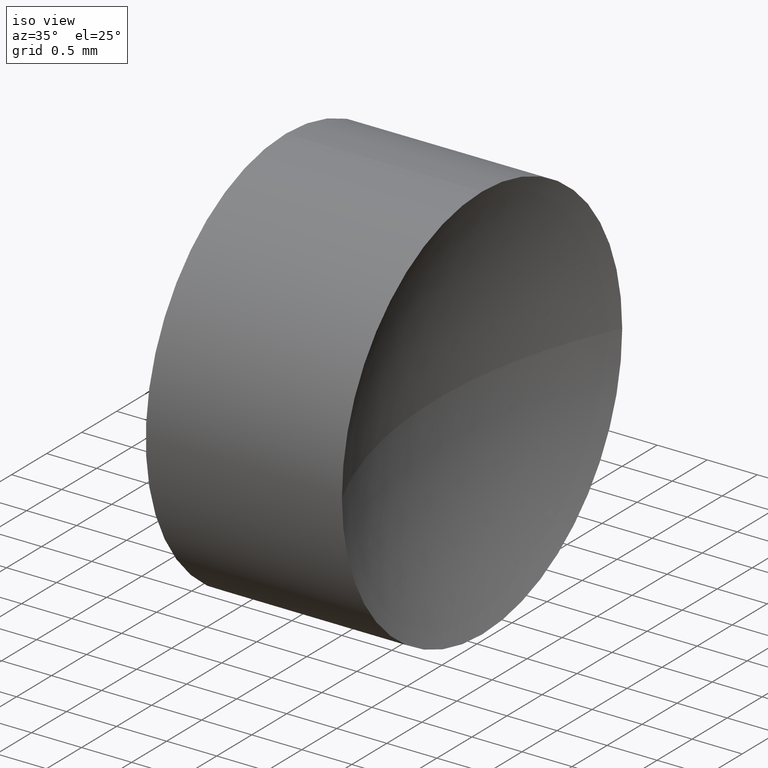
[diagram: clean part render]
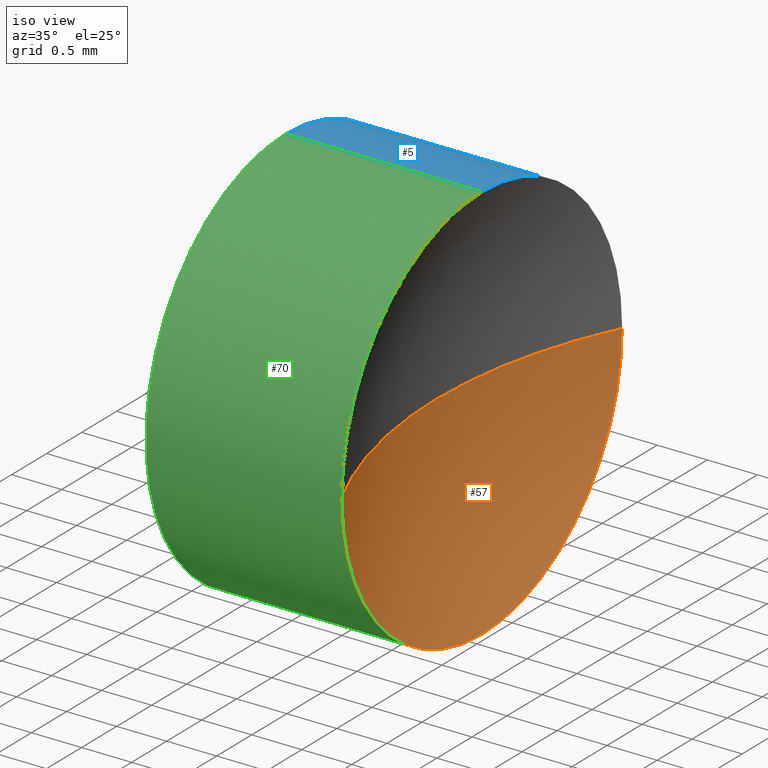
[diagram: same view with three faces highlighted in distinct colors, each labeled with its STEP entity id]
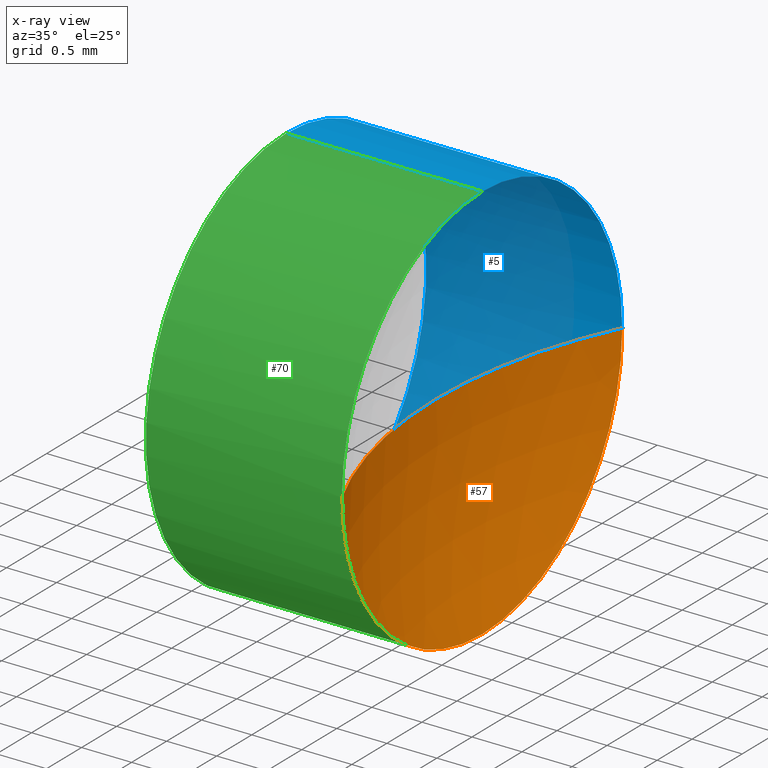
[diagram: x-ray of the same camera — body ghosted, the three highlighted faces saturated]
A machine part, iso view with three faces highlighted in distinct colors.
The next image is the same camera in x-ray (body ghosted, the three faces saturated) — at least one of them is partly hidden behind the body in this view.
Their STEP definitions:

[orange] entity #57 — the highlighted spherical surface has radius 4.58 mm.
#2 = VERTEX_POINT ( 'NONE', #150 ) ;
#3 = SPHERICAL_SURFACE ( 'NONE', #101, 4.580000000000001000 ) ;
#11 = CARTESIAN_POINT ( 'NONE',  ( 17.16059508478295800, 6.515563045701518300, 0.0000000000000000000 ) ) ;
#12 = DIRECTION ( 'NONE',  ( 0.0000000000000000000, 0.0000000000000000000, -1.000000000000000000 ) ) ;
#16 = DIRECTION ( 'NONE',  ( 0.0000000000000000000, 0.0000000000000000000, 1.000000000000000000 ) ) ;
#18 = CIRCLE ( 'NONE', #168, 2.000000000000000900 ) ;
#34 = AXIS2_PLACEMENT_3D ( 'NONE', #107, #157, #96 ) ;
#46 = FACE_OUTER_BOUND ( 'NONE', #186, .T. ) ;
#47 = ORIENTED_EDGE ( 'NONE', *, *, #145, .T. ) ;
#48 = CIRCLE ( 'NONE', #184, 2.000000000000000900 ) ;
#54 = CARTESIAN_POINT ( 'NONE',  ( 13.04035237348548100, 6.515563045701520100, 0.0000000000000000000 ) ) ;
#57 = ADVANCED_FACE ( 'NONE', ( #46 ), #3, .F. ) ;
#58 = VERTEX_POINT ( 'NONE', #109 ) ;
#59 = DIRECTION ( 'NONE',  ( 0.0000000000000000000, 1.000000000000000000, 0.0000000000000000000 ) ) ;
#60 = CARTESIAN_POINT ( 'NONE',  ( 13.04035237348548100, 6.515563045701520100, 0.0000000000000000000 ) ) ;
#62 = VERTEX_POINT ( 'NONE', #129 ) ;
#67 = ORIENTED_EDGE ( 'NONE', *, *, #103, .F. ) ;
#84 = DIRECTION ( 'NONE',  ( 0.0000000000000000000, 1.000000000000000000, 1.224646799147353500E-016 ) ) ;
#87 = ORIENTED_EDGE ( 'NONE', *, *, #131, .F. ) ;
#92 = CIRCLE ( 'NONE', #34, 4.580000000000001000 ) ;
#96 = DIRECTION ( 'NONE',  ( 1.000000000000000000, 0.0000000000000000000, 0.0000000000000000000 ) ) ;
#101 = AXIS2_PLACEMENT_3D ( 'NONE', #11, #12, #59 ) ;
#103 = EDGE_CURVE ( 'NONE', #62, #137, #18, .T. ) ;
#107 = CARTESIAN_POINT ( 'NONE',  ( 17.16059508478295800, 6.515563045701518300, 0.0000000000000000000 ) ) ;
#109 = CARTESIAN_POINT ( 'NONE',  ( 13.04035237348548100, 8.515563045701522800, 0.0000000000000000000 ) ) ;
#118 = EDGE_CURVE ( 'NONE', #58, #62, #48, .T. ) ;
#119 = AXIS2_PLACEMENT_3D ( 'NONE', #178, #152, #84 ) ;
#129 = CARTESIAN_POINT ( 'NONE',  ( 13.04035237348548100, 6.515563045701520100, -2.000000000000000900 ) ) ;
#130 = DIRECTION ( 'NONE',  ( -1.000000000000000000, -0.0000000000000000000, -0.0000000000000000000 ) ) ;
#131 = EDGE_CURVE ( 'NONE', #137, #2, #155, .T. ) ;
#137 = VERTEX_POINT ( 'NONE', #179 ) ;
#144 = ORIENTED_EDGE ( 'NONE', *, *, #118, .F. ) ;
#145 = EDGE_CURVE ( 'NONE', #58, #2, #92, .T. ) ;
#150 = CARTESIAN_POINT ( 'NONE',  ( 12.58059508478295800, 6.515563045701518300, 0.0000000000000000000 ) ) ;
#152 = DIRECTION ( 'NONE',  ( 0.0000000000000000000, 1.224646799147353200E-016, -1.000000000000000000 ) ) ;
#154 = DIRECTION ( 'NONE',  ( 0.0000000000000000000, 0.0000000000000000000, 1.000000000000000000 ) ) ;
#155 = CIRCLE ( 'NONE', #119, 4.580000000000000100 ) ;
#157 = DIRECTION ( 'NONE',  ( 0.0000000000000000000, 0.0000000000000000000, 1.000000000000000000 ) ) ;
#166 = DIRECTION ( 'NONE',  ( -1.000000000000000000, -0.0000000000000000000, -0.0000000000000000000 ) ) ;
#168 = AXIS2_PLACEMENT_3D ( 'NONE', #54, #166, #16 ) ;
#178 = CARTESIAN_POINT ( 'NONE',  ( 17.16059508478295800, 6.515563045701518300, 0.0000000000000000000 ) ) ;
#179 = CARTESIAN_POINT ( 'NONE',  ( 13.04035237348548100, 4.515563045701515700, -2.449293598294708900E-016 ) ) ;
#184 = AXIS2_PLACEMENT_3D ( 'NONE', #60, #130, #154 ) ;
#186 = EDGE_LOOP ( 'NONE', ( #87, #67, #144, #47 ) ) ;

[blue] entity #5 — the highlighted cylindrical surface (partial cylindrical patch) has radius 2 mm, axis along (-1, -0, -0).
#4 = ORIENTED_EDGE ( 'NONE', *, *, #147, .F. ) ;
#5 = ADVANCED_FACE ( 'NONE', ( #128 ), #127, .T. ) ;
#8 = DIRECTION ( 'NONE',  ( 0.0000000000000000000, 0.0000000000000000000, 1.000000000000000000 ) ) ;
#9 = LINE ( 'NONE', #110, #132 ) ;
#19 = CARTESIAN_POINT ( 'NONE',  ( 11.08059508478296000, 6.515563045701520100, -2.000000000000000900 ) ) ;
#35 = AXIS2_PLACEMENT_3D ( 'NONE', #125, #138, #40 ) ;
#40 = DIRECTION ( 'NONE',  ( 0.0000000000000000000, 0.0000000000000000000, 1.000000000000000000 ) ) ;
#42 = VERTEX_POINT ( 'NONE', #93 ) ;
#48 = CIRCLE ( 'NONE', #184, 2.000000000000000900 ) ;
#49 = EDGE_CURVE ( 'NONE', #170, #58, #120, .T. ) ;
#53 = LINE ( 'NONE', #83, #88 ) ;
#58 = VERTEX_POINT ( 'NONE', #109 ) ;
#60 = CARTESIAN_POINT ( 'NONE',  ( 13.04035237348548100, 6.515563045701520100, 0.0000000000000000000 ) ) ;
#62 = VERTEX_POINT ( 'NONE', #129 ) ;
#68 = ORIENTED_EDGE ( 'NONE', *, *, #118, .T. ) ;
#73 = DIRECTION ( 'NONE',  ( -1.000000000000000000, -0.0000000000000000000, -0.0000000000000000000 ) ) ;
#78 = DIRECTION ( 'NONE',  ( 0.0000000000000000000, 0.0000000000000000000, 1.000000000000000000 ) ) ;
#81 = CIRCLE ( 'NONE', #82, 2.000000000000000900 ) ;
#82 = AXIS2_PLACEMENT_3D ( 'NONE', #95, #73, #8 ) ;
#83 = CARTESIAN_POINT ( 'NONE',  ( 10.57823596122213100, 6.515563045701520100, 2.000000000000000900 ) ) ;
#88 = VECTOR ( 'NONE', #156, 1000.000000000000000 ) ;
#93 = CARTESIAN_POINT ( 'NONE',  ( 11.08059508478296000, 6.515563045701520100, 2.000000000000000900 ) ) ;
#95 = CARTESIAN_POINT ( 'NONE',  ( 11.08059508478296000, 6.515563045701520100, 0.0000000000000000000 ) ) ;
#97 = ORIENTED_EDGE ( 'NONE', *, *, #49, .T. ) ;
#109 = CARTESIAN_POINT ( 'NONE',  ( 13.04035237348548100, 8.515563045701522800, 0.0000000000000000000 ) ) ;
#110 = CARTESIAN_POINT ( 'NONE',  ( 10.57823596122213100, 6.515563045701520100, -2.000000000000000900 ) ) ;
#114 = EDGE_CURVE ( 'NONE', #62, #175, #9, .T. ) ;
#118 = EDGE_CURVE ( 'NONE', #58, #62, #48, .T. ) ;
#120 = CIRCLE ( 'NONE', #151, 2.000000000000000900 ) ;
#125 = CARTESIAN_POINT ( 'NONE',  ( 10.57823596122213100, 6.515563045701520100, 0.0000000000000000000 ) ) ;
#127 = CYLINDRICAL_SURFACE ( 'NONE', #35, 2.000000000000000900 ) ;
#128 = FACE_OUTER_BOUND ( 'NONE', #180, .T. ) ;
#129 = CARTESIAN_POINT ( 'NONE',  ( 13.04035237348548100, 6.515563045701520100, -2.000000000000000900 ) ) ;
#130 = DIRECTION ( 'NONE',  ( -1.000000000000000000, -0.0000000000000000000, -0.0000000000000000000 ) ) ;
#132 = VECTOR ( 'NONE', #165, 1000.000000000000000 ) ;
#138 = DIRECTION ( 'NONE',  ( -1.000000000000000000, -0.0000000000000000000, -0.0000000000000000000 ) ) ;
#146 = ORIENTED_EDGE ( 'NONE', *, *, #114, .T. ) ;
#147 = EDGE_CURVE ( 'NONE', #170, #42, #53, .T. ) ;
#151 = AXIS2_PLACEMENT_3D ( 'NONE', #176, #164, #78 ) ;
#153 = ORIENTED_EDGE ( 'NONE', *, *, #182, .F. ) ;
#154 = DIRECTION ( 'NONE',  ( 0.0000000000000000000, 0.0000000000000000000, 1.000000000000000000 ) ) ;
#156 = DIRECTION ( 'NONE',  ( -1.000000000000000000, -0.0000000000000000000, -0.0000000000000000000 ) ) ;
#164 = DIRECTION ( 'NONE',  ( -1.000000000000000000, -0.0000000000000000000, -0.0000000000000000000 ) ) ;
#165 = DIRECTION ( 'NONE',  ( -1.000000000000000000, -0.0000000000000000000, -0.0000000000000000000 ) ) ;
#167 = CARTESIAN_POINT ( 'NONE',  ( 13.04035237348548100, 6.515563045701520100, 2.000000000000000900 ) ) ;
#170 = VERTEX_POINT ( 'NONE', #167 ) ;
#175 = VERTEX_POINT ( 'NONE', #19 ) ;
#176 = CARTESIAN_POINT ( 'NONE',  ( 13.04035237348548100, 6.515563045701520100, 0.0000000000000000000 ) ) ;
#180 = EDGE_LOOP ( 'NONE', ( #68, #146, #153, #4, #97 ) ) ;
#182 = EDGE_CURVE ( 'NONE', #42, #175, #81, .T. ) ;
#184 = AXIS2_PLACEMENT_3D ( 'NONE', #60, #130, #154 ) ;

[green] entity #70 — the highlighted cylindrical surface (partial cylindrical patch) has radius 2 mm, axis along (-1, -0, -0).
#9 = LINE ( 'NONE', #110, #132 ) ;
#10 = AXIS2_PLACEMENT_3D ( 'NONE', #30, #183, #20 ) ;
#15 = AXIS2_PLACEMENT_3D ( 'NONE', #141, #64, #139 ) ;
#16 = DIRECTION ( 'NONE',  ( 0.0000000000000000000, 0.0000000000000000000, 1.000000000000000000 ) ) ;
#18 = CIRCLE ( 'NONE', #168, 2.000000000000000900 ) ;
#19 = CARTESIAN_POINT ( 'NONE',  ( 11.08059508478296000, 6.515563045701520100, -2.000000000000000900 ) ) ;
#20 = DIRECTION ( 'NONE',  ( 0.0000000000000000000, 0.0000000000000000000, 1.000000000000000000 ) ) ;
#30 = CARTESIAN_POINT ( 'NONE',  ( 13.04035237348548100, 6.515563045701520100, 0.0000000000000000000 ) ) ;
#33 = ORIENTED_EDGE ( 'NONE', *, *, #147, .T. ) ;
#42 = VERTEX_POINT ( 'NONE', #93 ) ;
#50 = CIRCLE ( 'NONE', #10, 2.000000000000000900 ) ;
#53 = LINE ( 'NONE', #83, #88 ) ;
#54 = CARTESIAN_POINT ( 'NONE',  ( 13.04035237348548100, 6.515563045701520100, 0.0000000000000000000 ) ) ;
#62 = VERTEX_POINT ( 'NONE', #129 ) ;
#64 = DIRECTION ( 'NONE',  ( -1.000000000000000000, -0.0000000000000000000, -0.0000000000000000000 ) ) ;
#70 = ADVANCED_FACE ( 'NONE', ( #185 ), #85, .T. ) ;
#72 = ORIENTED_EDGE ( 'NONE', *, *, #173, .F. ) ;
#76 = CARTESIAN_POINT ( 'NONE',  ( 10.57823596122213100, 6.515563045701520100, 0.0000000000000000000 ) ) ;
#80 = EDGE_CURVE ( 'NONE', #137, #170, #50, .T. ) ;
#83 = CARTESIAN_POINT ( 'NONE',  ( 10.57823596122213100, 6.515563045701520100, 2.000000000000000900 ) ) ;
#85 = CYLINDRICAL_SURFACE ( 'NONE', #140, 2.000000000000000900 ) ;
#88 = VECTOR ( 'NONE', #156, 1000.000000000000000 ) ;
#93 = CARTESIAN_POINT ( 'NONE',  ( 11.08059508478296000, 6.515563045701520100, 2.000000000000000900 ) ) ;
#94 = DIRECTION ( 'NONE',  ( 0.0000000000000000000, 0.0000000000000000000, 1.000000000000000000 ) ) ;
#103 = EDGE_CURVE ( 'NONE', #62, #137, #18, .T. ) ;
#106 = ORIENTED_EDGE ( 'NONE', *, *, #80, .T. ) ;
#110 = CARTESIAN_POINT ( 'NONE',  ( 10.57823596122213100, 6.515563045701520100, -2.000000000000000900 ) ) ;
#114 = EDGE_CURVE ( 'NONE', #62, #175, #9, .T. ) ;
#116 = ORIENTED_EDGE ( 'NONE', *, *, #114, .F. ) ;
#121 = ORIENTED_EDGE ( 'NONE', *, *, #103, .T. ) ;
#123 = CIRCLE ( 'NONE', #15, 2.000000000000000900 ) ;
#129 = CARTESIAN_POINT ( 'NONE',  ( 13.04035237348548100, 6.515563045701520100, -2.000000000000000900 ) ) ;
#132 = VECTOR ( 'NONE', #165, 1000.000000000000000 ) ;
#137 = VERTEX_POINT ( 'NONE', #179 ) ;
#139 = DIRECTION ( 'NONE',  ( 0.0000000000000000000, 0.0000000000000000000, 1.000000000000000000 ) ) ;
#140 = AXIS2_PLACEMENT_3D ( 'NONE', #76, #177, #94 ) ;
#141 = CARTESIAN_POINT ( 'NONE',  ( 11.08059508478296000, 6.515563045701520100, 0.0000000000000000000 ) ) ;
#147 = EDGE_CURVE ( 'NONE', #170, #42, #53, .T. ) ;
#156 = DIRECTION ( 'NONE',  ( -1.000000000000000000, -0.0000000000000000000, -0.0000000000000000000 ) ) ;
#159 = EDGE_LOOP ( 'NONE', ( #116, #121, #106, #33, #72 ) ) ;
#165 = DIRECTION ( 'NONE',  ( -1.000000000000000000, -0.0000000000000000000, -0.0000000000000000000 ) ) ;
#166 = DIRECTION ( 'NONE',  ( -1.000000000000000000, -0.0000000000000000000, -0.0000000000000000000 ) ) ;
#167 = CARTESIAN_POINT ( 'NONE',  ( 13.04035237348548100, 6.515563045701520100, 2.000000000000000900 ) ) ;
#168 = AXIS2_PLACEMENT_3D ( 'NONE', #54, #166, #16 ) ;
#170 = VERTEX_POINT ( 'NONE', #167 ) ;
#173 = EDGE_CURVE ( 'NONE', #175, #42, #123, .T. ) ;
#175 = VERTEX_POINT ( 'NONE', #19 ) ;
#177 = DIRECTION ( 'NONE',  ( -1.000000000000000000, -0.0000000000000000000, -0.0000000000000000000 ) ) ;
#179 = CARTESIAN_POINT ( 'NONE',  ( 13.04035237348548100, 4.515563045701515700, -2.449293598294708900E-016 ) ) ;
#183 = DIRECTION ( 'NONE',  ( -1.000000000000000000, -0.0000000000000000000, -0.0000000000000000000 ) ) ;
#185 = FACE_OUTER_BOUND ( 'NONE', #159, .T. ) ;